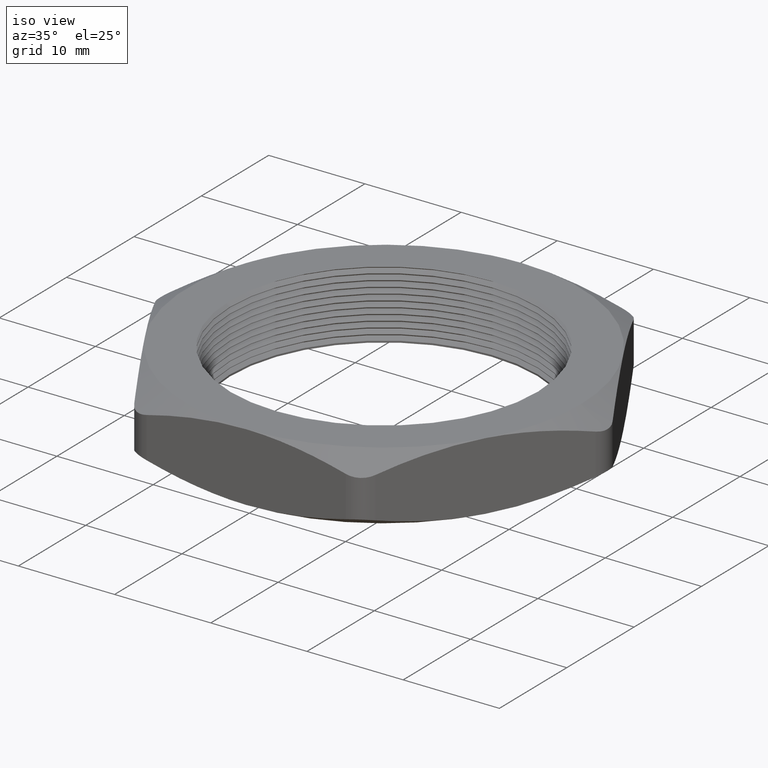
[diagram: clean part render]
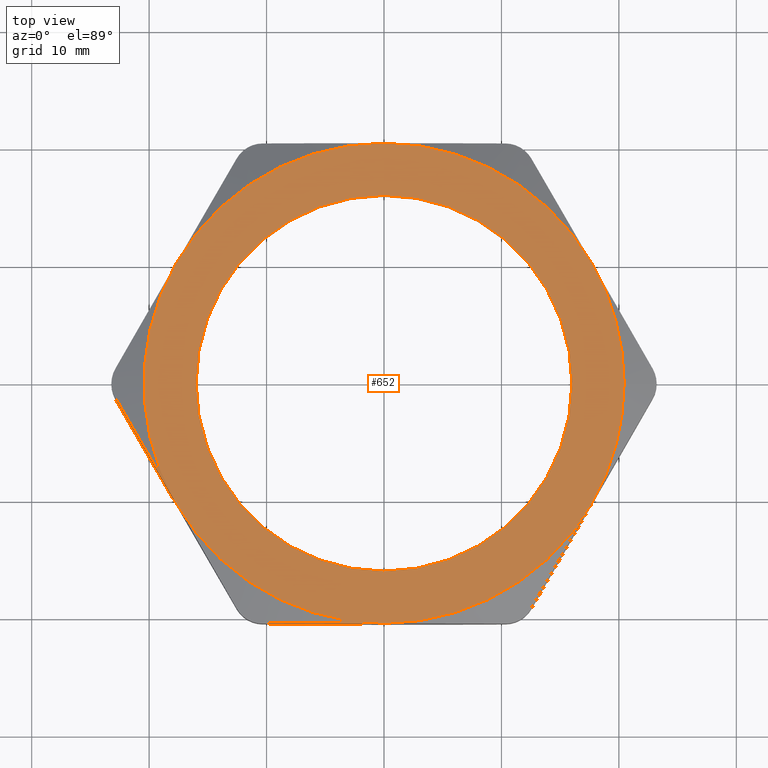
[diagram: tour spotlight — one face highlighted and labeled with its STEP entity id]
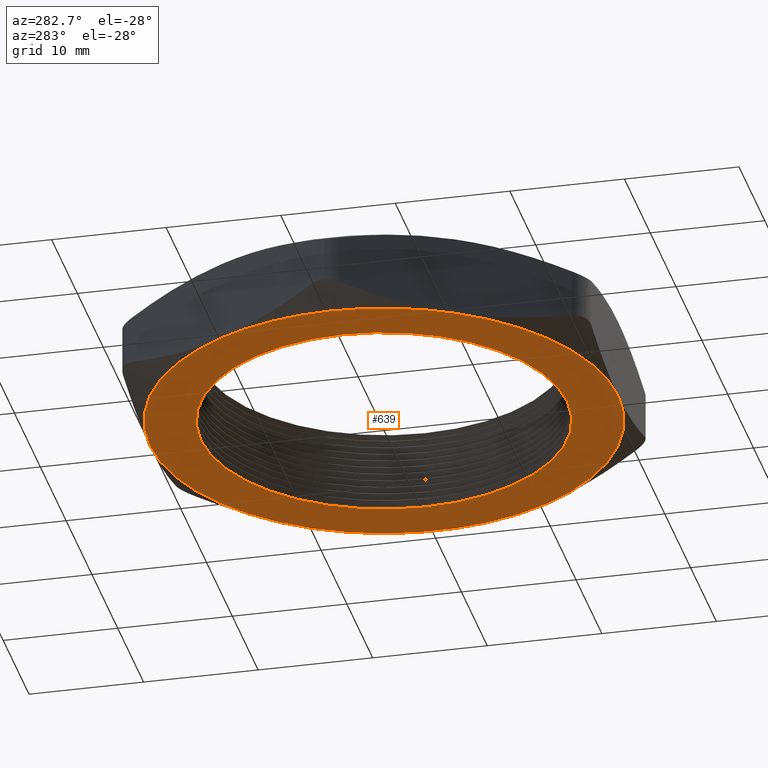
[diagram: tour spotlight — one face highlighted and labeled with its STEP entity id]
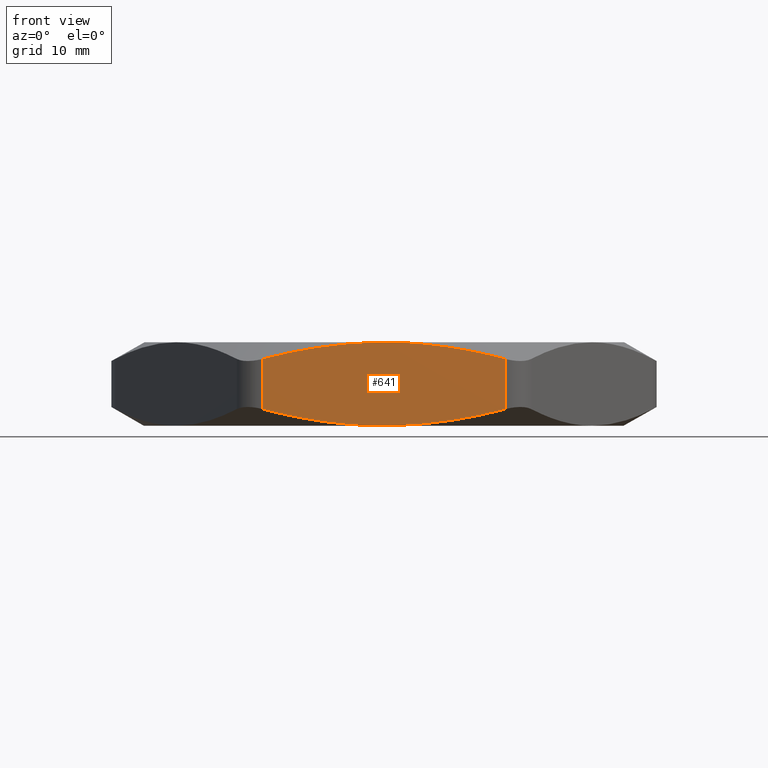
[diagram: tour spotlight — one face highlighted and labeled with its STEP entity id]
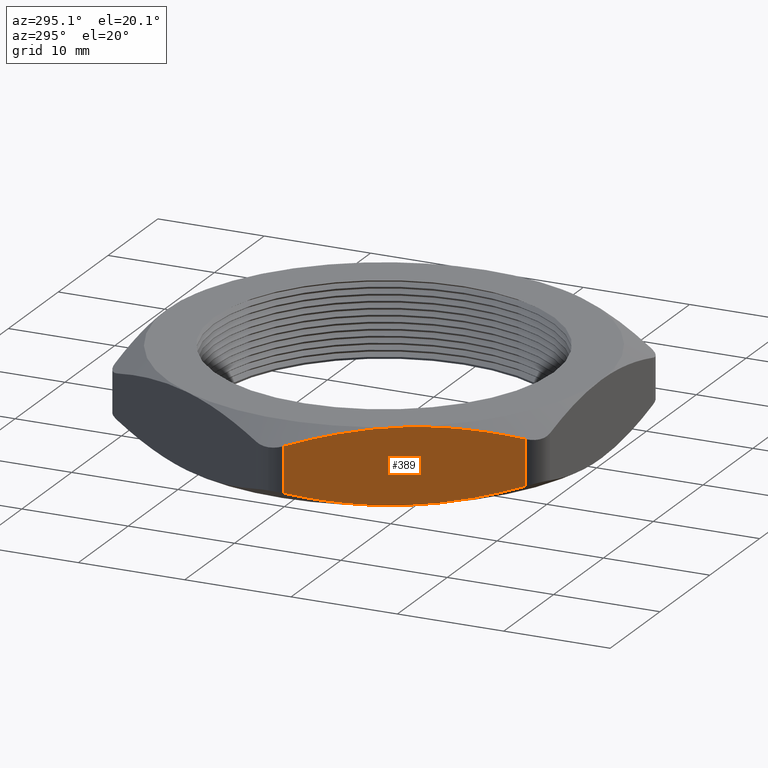
[diagram: tour spotlight — one face highlighted and labeled with its STEP entity id]
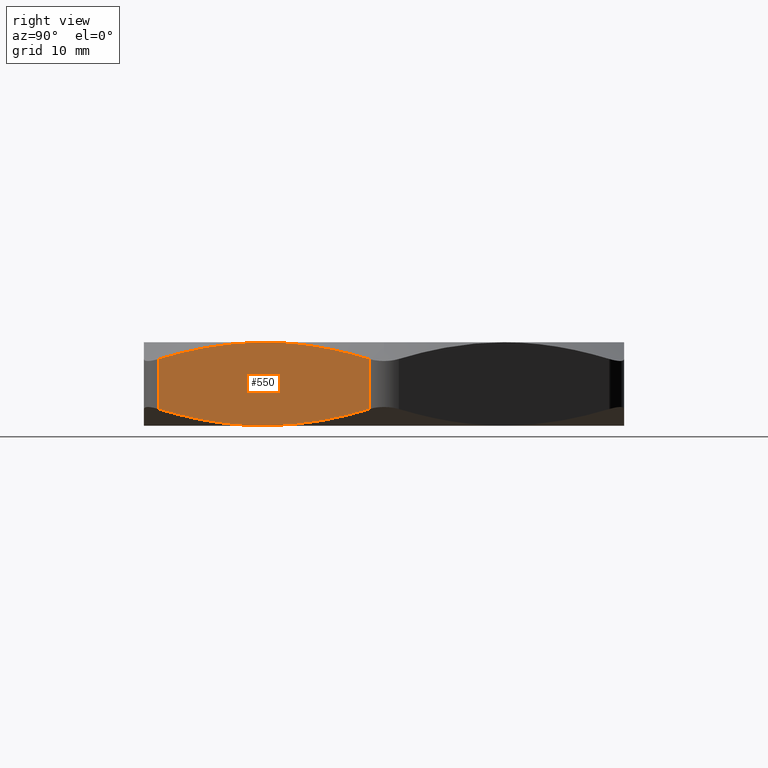
[diagram: tour spotlight — one face highlighted and labeled with its STEP entity id]
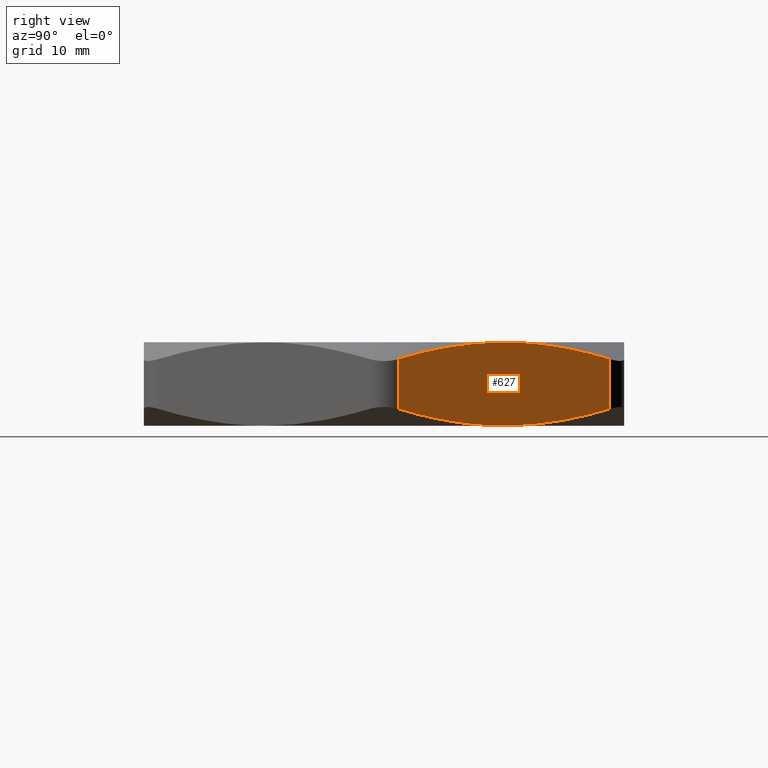
[diagram: tour spotlight — one face highlighted and labeled with its STEP entity id]
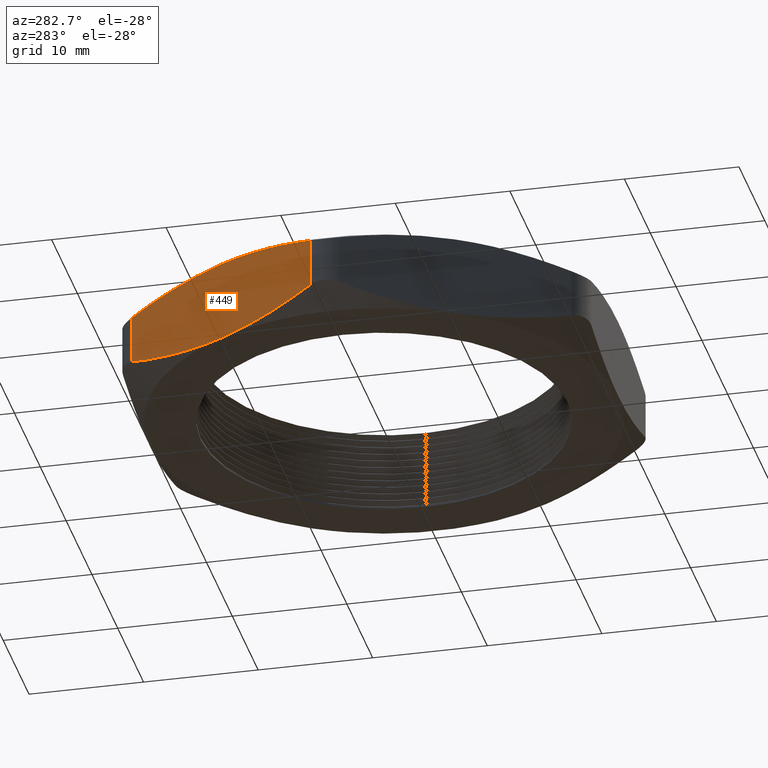
[diagram: tour spotlight — one face highlighted and labeled with its STEP entity id]
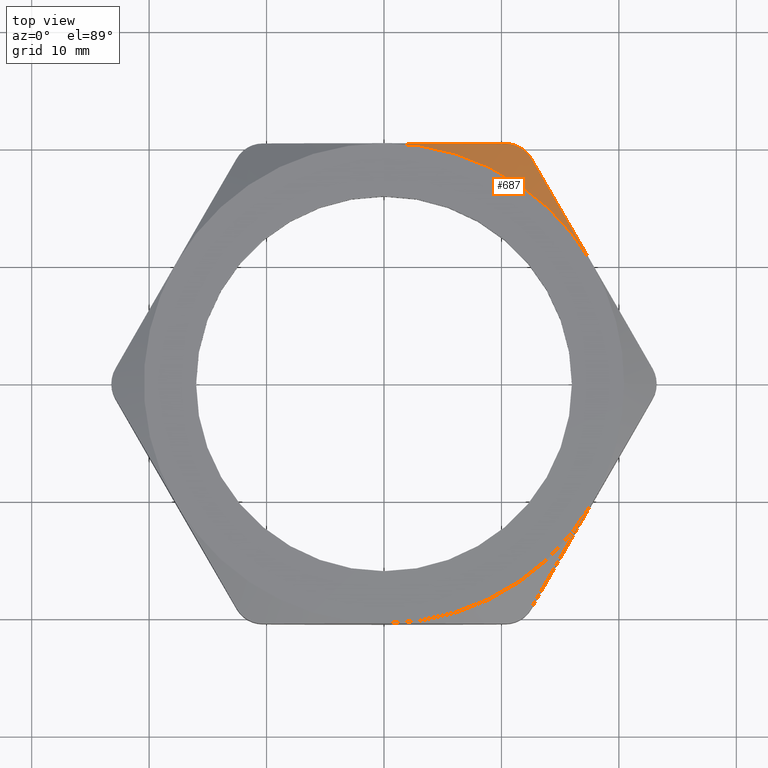
[diagram: tour spotlight — one face highlighted and labeled with its STEP entity id]
A machine part: a face-by-face anatomy tour. The part has 95 B-rep faces; the first image is the clean iso view, then the 8 largest visible faces are spotlighted one at a time (largest first), each with its STEP entity span.

Face 1 — top view, entity #652. In plain terms, the highlighted planar face has unit normal (0, 0, -1).
Definition (entity closure, byte-faithful):
#293 = EDGE_CURVE ( 'NONE', #294, #295, #1916, .T. ) ;
#294 = VERTEX_POINT ( 'NONE', #1912 ) ;
#295 = VERTEX_POINT ( 'NONE', #1911 ) ;
#315 = EDGE_CURVE ( 'NONE', #364, #365, #2074, .T. ) ;
#364 = VERTEX_POINT ( 'NONE', #2136 ) ;
#365 = VERTEX_POINT ( 'NONE', #2292 ) ;
#376 = VERTEX_POINT ( 'NONE', #2281 ) ;
#536 = VERTEX_POINT ( 'NONE', #1456 ) ;
#542 = VERTEX_POINT ( 'NONE', #1497 ) ;
#644 = EDGE_CURVE ( 'NONE', #365, #364, #1621, .T. ) ;
#645 = EDGE_LOOP ( 'NONE', ( #672, #693, #715, #720, #650, #718, #739 ) ) ;
#649 = EDGE_CURVE ( 'NONE', #376, #536, #1669, .T. ) ;
#650 = ORIENTED_EDGE ( 'NONE', *, *, #651, .T. ) ;
#651 = EDGE_CURVE ( 'NONE', #536, #294, #1664, .T. ) ;
#652 = ADVANCED_FACE ( 'NONE', ( #1659, #1658 ), #1657, .F. ) ;
#657 = VERTEX_POINT ( 'NONE', #1651 ) ;
#672 = ORIENTED_EDGE ( 'NONE', *, *, #673, .T. ) ;
#673 = EDGE_CURVE ( 'NONE', #2748, #542, #1725, .T. ) ;
#675 = EDGE_LOOP ( 'NONE', ( #746, #747 ) ) ;
#693 = ORIENTED_EDGE ( 'NONE', *, *, #694, .T. ) ;
#694 = EDGE_CURVE ( 'NONE', #542, #657, #1780, .T. ) ;
#715 = ORIENTED_EDGE ( 'NONE', *, *, #716, .T. ) ;
#716 = EDGE_CURVE ( 'NONE', #657, #376, #1806, .T. ) ;
#718 = ORIENTED_EDGE ( 'NONE', *, *, #293, .T. ) ;
#720 = ORIENTED_EDGE ( 'NONE', *, *, #649, .T. ) ;
#739 = ORIENTED_EDGE ( 'NONE', *, *, #740, .T. ) ;
#740 = EDGE_CURVE ( 'NONE', #295, #2748, #1827, .T. ) ;
#746 = ORIENTED_EDGE ( 'NONE', *, *, #315, .F. ) ;
#747 = ORIENTED_EDGE ( 'NONE', *, *, #644, .F. ) ;
#1456 = CARTESIAN_POINT ( 'NONE',  ( 0.6971504500464734700, -0.4025000000000001400, 0.2800000000000000300 ) ) ;
#1497 = CARTESIAN_POINT ( 'NONE',  ( -0.6971504500464734700, 0.4025000000000001400, 0.2800000000000000300 ) ) ;
#1617 = DIRECTION ( 'NONE',  ( 1.000000000000000000, 0.0000000000000000000, 0.0000000000000000000 ) ) ;
#1618 = DIRECTION ( 'NONE',  ( 0.0000000000000000000, 0.0000000000000000000, 1.000000000000000000 ) ) ;
#1619 = CARTESIAN_POINT ( 'NONE',  ( 0.0000000000000000000, 0.0000000000000000000, 0.2800000000000000300 ) ) ;
#1620 = AXIS2_PLACEMENT_3D ( 'NONE', #1619, #1618, #1617 ) ;
#1621 = CIRCLE ( 'NONE', #1620, 0.6300000000000000000 ) ;
#1651 = CARTESIAN_POINT ( 'NONE',  ( -0.6971504500464734700, -0.4024999999999998600, 0.2800000000000000300 ) ) ;
#1653 = DIRECTION ( 'NONE',  ( -1.000000000000000000, 0.0000000000000000000, 0.0000000000000000000 ) ) ;
#1654 = DIRECTION ( 'NONE',  ( 0.0000000000000000000, 0.0000000000000000000, -1.000000000000000000 ) ) ;
#1655 = CARTESIAN_POINT ( 'NONE',  ( -0.4647669666976488300, 0.8050000000000000500, 0.2800000000000000300 ) ) ;
#1656 = AXIS2_PLACEMENT_3D ( 'NONE', #1655, #1654, #1653 ) ;
#1657 = PLANE ( 'NONE',  #1656 ) ;
#1658 = FACE_OUTER_BOUND ( 'NONE', #645, .T. ) ;
#1659 = FACE_BOUND ( 'NONE', #675, .T. ) ;
#1660 = DIRECTION ( 'NONE',  ( 1.000000000000000000, 0.0000000000000000000, 0.0000000000000000000 ) ) ;
#1661 = DIRECTION ( 'NONE',  ( 0.0000000000000000000, 0.0000000000000000000, 1.000000000000000000 ) ) ;
#1662 = CARTESIAN_POINT ( 'NONE',  ( 0.0000000000000000000, 0.0000000000000000000, 0.2800000000000000300 ) ) ;
#1663 = AXIS2_PLACEMENT_3D ( 'NONE', #1662, #1661, #1660 ) ;
#1664 = CIRCLE ( 'NONE', #1663, 0.8050000000000000500 ) ;
#1665 = DIRECTION ( 'NONE',  ( 1.000000000000000000, 0.0000000000000000000, 0.0000000000000000000 ) ) ;
#1666 = DIRECTION ( 'NONE',  ( 0.0000000000000000000, 0.0000000000000000000, 1.000000000000000000 ) ) ;
#1667 = CARTESIAN_POINT ( 'NONE',  ( 0.0000000000000000000, 0.0000000000000000000, 0.2800000000000000300 ) ) ;
#1668 = AXIS2_PLACEMENT_3D ( 'NONE', #1667, #1666, #1665 ) ;
#1669 = CIRCLE ( 'NONE', #1668, 0.8050000000000000500 ) ;
#1682 = CARTESIAN_POINT ( 'NONE',  ( 0.0000000000000000000, 0.0000000000000000000, 0.2800000000000000300 ) ) ;
#1722 = DIRECTION ( 'NONE',  ( 1.000000000000000000, 0.0000000000000000000, 0.0000000000000000000 ) ) ;
#1723 = DIRECTION ( 'NONE',  ( 0.0000000000000000000, 0.0000000000000000000, 1.000000000000000000 ) ) ;
#1724 = AXIS2_PLACEMENT_3D ( 'NONE', #1682, #1723, #1722 ) ;
#1725 = CIRCLE ( 'NONE', #1724, 0.8050000000000000500 ) ;
#1777 = DIRECTION ( 'NONE',  ( 1.000000000000000000, 0.0000000000000000000, 0.0000000000000000000 ) ) ;
#1778 = DIRECTION ( 'NONE',  ( 0.0000000000000000000, 0.0000000000000000000, 1.000000000000000000 ) ) ;
#1779 = AXIS2_PLACEMENT_3D ( 'NONE', #1787, #1778, #1777 ) ;
#1780 = CIRCLE ( 'NONE', #1779, 0.8050000000000000500 ) ;
#1787 = CARTESIAN_POINT ( 'NONE',  ( 0.0000000000000000000, 0.0000000000000000000, 0.2800000000000000300 ) ) ;
#1800 = DIRECTION ( 'NONE',  ( 1.000000000000000000, 0.0000000000000000000, 0.0000000000000000000 ) ) ;
#1801 = DIRECTION ( 'NONE',  ( 0.0000000000000000000, 0.0000000000000000000, 1.000000000000000000 ) ) ;
#1802 = CARTESIAN_POINT ( 'NONE',  ( 0.0000000000000000000, 0.0000000000000000000, 0.2800000000000000300 ) ) ;
#1803 = AXIS2_PLACEMENT_3D ( 'NONE', #1802, #1801, #1800 ) ;
#1806 = CIRCLE ( 'NONE', #1803, 0.8050000000000000500 ) ;
#1826 = AXIS2_PLACEMENT_3D ( 'NONE', #1828, #2741, #2740 ) ;
#1827 = CIRCLE ( 'NONE', #1826, 0.8050000000000000500 ) ;
#1828 = CARTESIAN_POINT ( 'NONE',  ( 0.0000000000000000000, 0.0000000000000000000, 0.2800000000000000300 ) ) ;
#1911 = CARTESIAN_POINT ( 'NONE',  ( 0.6971504500464735800, 0.4024999999999999100, 0.2800000000000000300 ) ) ;
#1912 = CARTESIAN_POINT ( 'NONE',  ( 0.8050000000000000500, 0.0000000000000000000, 0.2800000000000000300 ) ) ;
#1913 = DIRECTION ( 'NONE',  ( 1.000000000000000000, 0.0000000000000000000, 0.0000000000000000000 ) ) ;
#1914 = DIRECTION ( 'NONE',  ( 0.0000000000000000000, 0.0000000000000000000, 1.000000000000000000 ) ) ;
#1915 = AXIS2_PLACEMENT_3D ( 'NONE', #1921, #1914, #1913 ) ;
#1916 = CIRCLE ( 'NONE', #1915, 0.8050000000000000500 ) ;
#1921 = CARTESIAN_POINT ( 'NONE',  ( 0.0000000000000000000, 0.0000000000000000000, 0.2800000000000000300 ) ) ;
#2070 = DIRECTION ( 'NONE',  ( 1.000000000000000000, 0.0000000000000000000, 0.0000000000000000000 ) ) ;
#2071 = DIRECTION ( 'NONE',  ( 0.0000000000000000000, 0.0000000000000000000, 1.000000000000000000 ) ) ;
#2072 = CARTESIAN_POINT ( 'NONE',  ( 0.0000000000000000000, 0.0000000000000000000, 0.2800000000000000300 ) ) ;
#2073 = AXIS2_PLACEMENT_3D ( 'NONE', #2072, #2071, #2070 ) ;
#2074 = CIRCLE ( 'NONE', #2073, 0.6300000000000000000 ) ;
#2136 = CARTESIAN_POINT ( 'NONE',  ( -0.6300000000000000000, 0.0000000000000000000, 0.2800000000000000300 ) ) ;
#2281 = CARTESIAN_POINT ( 'NONE',  ( 1.182924880895400300E-016, -0.8049999999999998300, 0.2800000000000000300 ) ) ;
#2292 = CARTESIAN_POINT ( 'NONE',  ( 0.6300000000000000000, 7.837739514543061700E-017, 0.2800000000000000300 ) ) ;
#2624 = CARTESIAN_POINT ( 'NONE',  ( 0.0000000000000000000, 0.8050000000000000500, 0.2800000000000000300 ) ) ;
#2740 = DIRECTION ( 'NONE',  ( 1.000000000000000000, 0.0000000000000000000, 0.0000000000000000000 ) ) ;
#2741 = DIRECTION ( 'NONE',  ( 0.0000000000000000000, 0.0000000000000000000, 1.000000000000000000 ) ) ;
#2748 = VERTEX_POINT ( 'NONE', #2624 ) ;

Face 2 — auxiliary view, entity #639. In plain terms, the highlighted planar face has unit normal (0, 0, -1).
Definition (entity closure, byte-faithful):
#1 = CIRCLE ( 'NONE', #5, 0.8049999999999998300 ) ;
#2 = DIRECTION ( 'NONE',  ( -1.000000000000000000, 0.0000000000000000000, 0.0000000000000000000 ) ) ;
#3 = DIRECTION ( 'NONE',  ( 0.0000000000000000000, 0.0000000000000000000, -1.000000000000000000 ) ) ;
#4 = CARTESIAN_POINT ( 'NONE',  ( 0.0000000000000000000, 0.0000000000000000000, 0.0000000000000000000 ) ) ;
#5 = AXIS2_PLACEMENT_3D ( 'NONE', #4, #3, #2 ) ;
#250 = EDGE_CURVE ( 'NONE', #344, #342, #1969, .T. ) ;
#257 = EDGE_CURVE ( 'NONE', #342, #344, #1955, .T. ) ;
#342 = VERTEX_POINT ( 'NONE', #2025 ) ;
#344 = VERTEX_POINT ( 'NONE', #2024 ) ;
#394 = VERTEX_POINT ( 'NONE', #2214 ) ;
#469 = EDGE_CURVE ( 'NONE', #470, #471, #1, .T. ) ;
#470 = VERTEX_POINT ( 'NONE', #586 ) ;
#471 = VERTEX_POINT ( 'NONE', #585 ) ;
#531 = VERTEX_POINT ( 'NONE', #1460 ) ;
#555 = VERTEX_POINT ( 'NONE', #1505 ) ;
#585 = CARTESIAN_POINT ( 'NONE',  ( -0.6971504500464731400, 0.4025000000000000800, 0.0000000000000000000 ) ) ;
#586 = CARTESIAN_POINT ( 'NONE',  ( -0.8049999999999998300, 0.0000000000000000000, 0.0000000000000000000 ) ) ;
#629 = ORIENTED_EDGE ( 'NONE', *, *, #250, .T. ) ;
#630 = ORIENTED_EDGE ( 'NONE', *, *, #257, .T. ) ;
#631 = EDGE_LOOP ( 'NONE', ( #632, #634, #662, #653, #648, #646, #697 ) ) ;
#632 = ORIENTED_EDGE ( 'NONE', *, *, #633, .T. ) ;
#633 = EDGE_CURVE ( 'NONE', #394, #470, #1588, .T. ) ;
#634 = ORIENTED_EDGE ( 'NONE', *, *, #469, .T. ) ;
#639 = ADVANCED_FACE ( 'NONE', ( #1644, #1642 ), #1633, .T. ) ;
#640 = EDGE_LOOP ( 'NONE', ( #629, #630 ) ) ;
#646 = ORIENTED_EDGE ( 'NONE', *, *, #647, .T. ) ;
#647 = EDGE_CURVE ( 'NONE', #555, #531, #1673, .T. ) ;
#648 = ORIENTED_EDGE ( 'NONE', *, *, #676, .T. ) ;
#653 = ORIENTED_EDGE ( 'NONE', *, *, #674, .T. ) ;
#662 = ORIENTED_EDGE ( 'NONE', *, *, #663, .T. ) ;
#663 = EDGE_CURVE ( 'NONE', #471, #2754, #1692, .T. ) ;
#674 = EDGE_CURVE ( 'NONE', #2754, #2750, #1721, .T. ) ;
#676 = EDGE_CURVE ( 'NONE', #2750, #555, #1716, .T. ) ;
#697 = ORIENTED_EDGE ( 'NONE', *, *, #698, .T. ) ;
#698 = EDGE_CURVE ( 'NONE', #531, #394, #1776, .T. ) ;
#1460 = CARTESIAN_POINT ( 'NONE',  ( 1.182924880895400500E-016, -0.8050000000000000500, 0.0000000000000000000 ) ) ;
#1505 = CARTESIAN_POINT ( 'NONE',  ( 0.6971504500464730200, -0.4025000000000000200, 0.0000000000000000000 ) ) ;
#1584 = DIRECTION ( 'NONE',  ( -1.000000000000000000, 0.0000000000000000000, 0.0000000000000000000 ) ) ;
#1585 = DIRECTION ( 'NONE',  ( 0.0000000000000000000, 0.0000000000000000000, -1.000000000000000000 ) ) ;
#1586 = CARTESIAN_POINT ( 'NONE',  ( 0.0000000000000000000, 0.0000000000000000000, 0.0000000000000000000 ) ) ;
#1587 = AXIS2_PLACEMENT_3D ( 'NONE', #1586, #1585, #1584 ) ;
#1588 = CIRCLE ( 'NONE', #1587, 0.8049999999999998300 ) ;
#1622 = CARTESIAN_POINT ( 'NONE',  ( 0.0000000000000000000, 0.0000000000000000000, 0.0000000000000000000 ) ) ;
#1629 = DIRECTION ( 'NONE',  ( -1.000000000000000000, 0.0000000000000000000, 0.0000000000000000000 ) ) ;
#1630 = DIRECTION ( 'NONE',  ( 0.0000000000000000000, 0.0000000000000000000, -1.000000000000000000 ) ) ;
#1631 = CARTESIAN_POINT ( 'NONE',  ( -0.4647669666976488300, 0.8050000000000000500, 0.0000000000000000000 ) ) ;
#1632 = AXIS2_PLACEMENT_3D ( 'NONE', #1631, #1630, #1629 ) ;
#1633 = PLANE ( 'NONE',  #1632 ) ;
#1642 = FACE_OUTER_BOUND ( 'NONE', #631, .T. ) ;
#1644 = FACE_BOUND ( 'NONE', #640, .T. ) ;
#1670 = DIRECTION ( 'NONE',  ( -1.000000000000000000, 0.0000000000000000000, 0.0000000000000000000 ) ) ;
#1671 = DIRECTION ( 'NONE',  ( 0.0000000000000000000, 0.0000000000000000000, -1.000000000000000000 ) ) ;
#1672 = AXIS2_PLACEMENT_3D ( 'NONE', #1622, #1671, #1670 ) ;
#1673 = CIRCLE ( 'NONE', #1672, 0.8049999999999998300 ) ;
#1689 = DIRECTION ( 'NONE',  ( -1.000000000000000000, 0.0000000000000000000, 0.0000000000000000000 ) ) ;
#1690 = DIRECTION ( 'NONE',  ( 0.0000000000000000000, 0.0000000000000000000, -1.000000000000000000 ) ) ;
#1691 = AXIS2_PLACEMENT_3D ( 'NONE', #1699, #1690, #1689 ) ;
#1692 = CIRCLE ( 'NONE', #1691, 0.8050000000000000500 ) ;
#1699 = CARTESIAN_POINT ( 'NONE',  ( 0.0000000000000000000, 0.0000000000000000000, 0.0000000000000000000 ) ) ;
#1712 = DIRECTION ( 'NONE',  ( -1.000000000000000000, 0.0000000000000000000, 0.0000000000000000000 ) ) ;
#1713 = DIRECTION ( 'NONE',  ( 0.0000000000000000000, 0.0000000000000000000, -1.000000000000000000 ) ) ;
#1714 = CARTESIAN_POINT ( 'NONE',  ( 0.0000000000000000000, 0.0000000000000000000, 0.0000000000000000000 ) ) ;
#1715 = AXIS2_PLACEMENT_3D ( 'NONE', #1714, #1713, #1712 ) ;
#1716 = CIRCLE ( 'NONE', #1715, 0.8049999999999998300 ) ;
#1717 = DIRECTION ( 'NONE',  ( -1.000000000000000000, 0.0000000000000000000, 0.0000000000000000000 ) ) ;
#1718 = DIRECTION ( 'NONE',  ( 0.0000000000000000000, 0.0000000000000000000, -1.000000000000000000 ) ) ;
#1719 = CARTESIAN_POINT ( 'NONE',  ( 0.0000000000000000000, 0.0000000000000000000, 0.0000000000000000000 ) ) ;
#1720 = AXIS2_PLACEMENT_3D ( 'NONE', #1719, #1718, #1717 ) ;
#1721 = CIRCLE ( 'NONE', #1720, 0.8049999999999998300 ) ;
#1772 = DIRECTION ( 'NONE',  ( -1.000000000000000000, 0.0000000000000000000, 0.0000000000000000000 ) ) ;
#1773 = DIRECTION ( 'NONE',  ( 0.0000000000000000000, 0.0000000000000000000, -1.000000000000000000 ) ) ;
#1774 = CARTESIAN_POINT ( 'NONE',  ( 0.0000000000000000000, 0.0000000000000000000, 0.0000000000000000000 ) ) ;
#1775 = AXIS2_PLACEMENT_3D ( 'NONE', #1774, #1773, #1772 ) ;
#1776 = CIRCLE ( 'NONE', #1775, 0.8049999999999998300 ) ;
#1951 = DIRECTION ( 'NONE',  ( 1.000000000000000000, 0.0000000000000000000, 0.0000000000000000000 ) ) ;
#1952 = DIRECTION ( 'NONE',  ( 0.0000000000000000000, 0.0000000000000000000, 1.000000000000000000 ) ) ;
#1953 = CARTESIAN_POINT ( 'NONE',  ( 0.0000000000000000000, 0.0000000000000000000, 0.0000000000000000000 ) ) ;
#1954 = AXIS2_PLACEMENT_3D ( 'NONE', #1953, #1952, #1951 ) ;
#1955 = CIRCLE ( 'NONE', #1954, 0.6300000000000000000 ) ;
#1966 = DIRECTION ( 'NONE',  ( 1.000000000000000000, 0.0000000000000000000, 0.0000000000000000000 ) ) ;
#1967 = DIRECTION ( 'NONE',  ( 0.0000000000000000000, 0.0000000000000000000, 1.000000000000000000 ) ) ;
#1968 = AXIS2_PLACEMENT_3D ( 'NONE', #1973, #1967, #1966 ) ;
#1969 = CIRCLE ( 'NONE', #1968, 0.6300000000000000000 ) ;
#1973 = CARTESIAN_POINT ( 'NONE',  ( 0.0000000000000000000, 0.0000000000000000000, 0.0000000000000000000 ) ) ;
#2024 = CARTESIAN_POINT ( 'NONE',  ( -0.6300000000000000000, 0.0000000000000000000, 0.0000000000000000000 ) ) ;
#2025 = CARTESIAN_POINT ( 'NONE',  ( 0.6300000000000000000, 7.715274834628325400E-017, 0.0000000000000000000 ) ) ;
#2214 = CARTESIAN_POINT ( 'NONE',  ( -0.6971504500464732500, -0.4024999999999997500, 0.0000000000000000000 ) ) ;
#2621 = CARTESIAN_POINT ( 'NONE',  ( 0.0000000000000000000, 0.8050000000000000500, 0.0000000000000000000 ) ) ;
#2626 = CARTESIAN_POINT ( 'NONE',  ( 0.6971504500464732500, 0.4024999999999998000, 0.0000000000000000000 ) ) ;
#2750 = VERTEX_POINT ( 'NONE', #2626 ) ;
#2754 = VERTEX_POINT ( 'NONE', #2621 ) ;

Face 3 — front view, entity #641. In plain terms, the highlighted planar face has unit normal (-0, 1, 0).
Definition (entity closure, byte-faithful):
#23 = ORIENTED_EDGE ( 'NONE', *, *, #375, .F. ) ;
#25 = VERTEX_POINT ( 'NONE', #1043 ) ;
#375 = EDGE_CURVE ( 'NONE', #376, #25, #2282, .T. ) ;
#376 = VERTEX_POINT ( 'NONE', #2281 ) ;
#377 = ORIENTED_EDGE ( 'NONE', *, *, #378, .F. ) ;
#378 = EDGE_CURVE ( 'NONE', #379, #376, #2272, .T. ) ;
#379 = VERTEX_POINT ( 'NONE', #2271 ) ;
#380 = ORIENTED_EDGE ( 'NONE', *, *, #569, .T. ) ;
#531 = VERTEX_POINT ( 'NONE', #1460 ) ;
#532 = ORIENTED_EDGE ( 'NONE', *, *, #572, .T. ) ;
#549 = EDGE_CURVE ( 'NONE', #531, #570, #1519, .T. ) ;
#558 = ORIENTED_EDGE ( 'NONE', *, *, #559, .F. ) ;
#559 = EDGE_CURVE ( 'NONE', #686, #531, #1546, .T. ) ;
#569 = EDGE_CURVE ( 'NONE', #379, #570, #1573, .T. ) ;
#570 = VERTEX_POINT ( 'NONE', #1561 ) ;
#571 = ORIENTED_EDGE ( 'NONE', *, *, #549, .F. ) ;
#572 = EDGE_CURVE ( 'NONE', #686, #25, #1560, .T. ) ;
#641 = ADVANCED_FACE ( 'NONE', ( #1628 ), #1627, .F. ) ;
#660 = EDGE_LOOP ( 'NONE', ( #558, #532, #23, #377, #380, #571 ) ) ;
#686 = VERTEX_POINT ( 'NONE', #1749 ) ;
#1043 = CARTESIAN_POINT ( 'NONE',  ( 0.4070319397786862900, -0.8049999999999998300, 0.2239663010554733500 ) ) ;
#1460 = CARTESIAN_POINT ( 'NONE',  ( 1.182924880895400500E-016, -0.8050000000000000500, 0.0000000000000000000 ) ) ;
#1509 = CARTESIAN_POINT ( 'NONE',  ( -0.4070319397786921200, -0.8050000000000000500, 0.05603369894452794200 ) ) ;
#1510 = CARTESIAN_POINT ( 'NONE',  ( -0.3736440728882453600, -0.8049999999999998300, 0.04733559931829577100 ) ) ;
#1511 = CARTESIAN_POINT ( 'NONE',  ( -0.3399264071752846100, -0.8050000000000001600, 0.03940933049144212200 ) ) ;
#1512 = CARTESIAN_POINT ( 'NONE',  ( -0.2724720025313903700, -0.8050000000000000500, 0.02556361763985591900 ) ) ;
#1513 = CARTESIAN_POINT ( 'NONE',  ( -0.2386573306262682600, -0.8049999999999998300, 0.01962339070232459500 ) ) ;
#1514 = CARTESIAN_POINT ( 'NONE',  ( -0.1369158576201742500, -0.8050000000000000500, 0.005144332140097254700 ) ) ;
#1515 = CARTESIAN_POINT ( 'NONE',  ( -0.06868689231738217500, -0.8050000000000000500, -4.126228740430399100E-017 ) ) ;
#1516 = CARTESIAN_POINT ( 'NONE',  ( 1.182924880895400500E-016, -0.8050000000000000500, 0.0000000000000000000 ) ) ;
#1519 = B_SPLINE_CURVE_WITH_KNOTS ( 'NONE', 3,
 ( #1516, #1515, #1514, #1513, #1512, #1511, #1510, #1509 ),
 .UNSPECIFIED., .F., .F.,
 ( 4, 2, 2, 4 ),
 ( 0.06753682115212610000, 0.07275696040311240000, 0.07536703002860555000, 0.07797709965409870000 ),
 .UNSPECIFIED. ) ;
#1535 = CARTESIAN_POINT ( 'NONE',  ( 1.182924880895400500E-016, -0.8050000000000000500, 0.0000000000000000000 ) ) ;
#1536 = CARTESIAN_POINT ( 'NONE',  ( 0.03432798341849611900, -0.8049999999999997200, -3.885383851666052000E-017 ) ) ;
#1537 = CARTESIAN_POINT ( 'NONE',  ( 0.06876927857934934900, -0.8050000000000001600, 0.001272939179144252200 ) ) ;
#1538 = CARTESIAN_POINT ( 'NONE',  ( 0.1378774033119676300, -0.8049999999999998300, 0.006352461288036207100 ) ) ;
#1539 = CARTESIAN_POINT ( 'NONE',  ( 0.1721876262036882200, -0.8049999999999997200, 0.01013283295829009300 ) ) ;
#1540 = CARTESIAN_POINT ( 'NONE',  ( 0.2741538617125915400, -0.8049999999999998300, 0.02473920009370485900 ) ) ;
#1541 = CARTESIAN_POINT ( 'NONE',  ( 0.3409978994224126000, -0.8050000000000001600, 0.03883072327596584500 ) ) ;
#1542 = CARTESIAN_POINT ( 'NONE',  ( 0.4070319397786861200, -0.8049999999999998300, 0.05603369894452666500 ) ) ;
#1546 = B_SPLINE_CURVE_WITH_KNOTS ( 'NONE', 3,
 ( #1542, #1541, #1540, #1539, #1538, #1537, #1536, #1535 ),
 .UNSPECIFIED., .F., .F.,
 ( 4, 2, 2, 4 ),
 ( 0.05710124326503342200, 0.06231903220857976100, 0.06492792668035293800, 0.06753682115212610000 ),
 .UNSPECIFIED. ) ;
#1557 = DIRECTION ( 'NONE',  ( 0.0000000000000000000, 0.0000000000000000000, 1.000000000000000000 ) ) ;
#1558 = VECTOR ( 'NONE', #1557, 39.37007874015748100 ) ;
#1559 = CARTESIAN_POINT ( 'NONE',  ( 0.4070319397786862900, -0.8049999999999998300, 0.2800000000000000300 ) ) ;
#1560 = LINE ( 'NONE', #1559, #1558 ) ;
#1561 = CARTESIAN_POINT ( 'NONE',  ( -0.4070319397786921200, -0.8050000000000000500, 0.05603369894452794200 ) ) ;
#1562 = VECTOR ( 'NONE', #1571, 39.37007874015748100 ) ;
#1571 = DIRECTION ( 'NONE',  ( 0.0000000000000000000, 0.0000000000000000000, -1.000000000000000000 ) ) ;
#1572 = CARTESIAN_POINT ( 'NONE',  ( -0.4070319397786865100, -0.8050000000000000500, 0.2800000000000000300 ) ) ;
#1573 = LINE ( 'NONE', #1572, #1562 ) ;
#1623 = DIRECTION ( 'NONE',  ( -1.000000000000000000, -1.469471901733416700E-016, 0.0000000000000000000 ) ) ;
#1624 = DIRECTION ( 'NONE',  ( -1.469471901733416700E-016, 1.000000000000000000, 0.0000000000000000000 ) ) ;
#1625 = CARTESIAN_POINT ( 'NONE',  ( -0.4647669666976491100, -0.8050000000000000500, 0.2800000000000000300 ) ) ;
#1626 = AXIS2_PLACEMENT_3D ( 'NONE', #1625, #1624, #1623 ) ;
#1627 = PLANE ( 'NONE',  #1626 ) ;
#1628 = FACE_OUTER_BOUND ( 'NONE', #660, .T. ) ;
#1749 = CARTESIAN_POINT ( 'NONE',  ( 0.4070319397786861200, -0.8049999999999998300, 0.05603369894452666500 ) ) ;
#2263 = CARTESIAN_POINT ( 'NONE',  ( 1.182924880895400300E-016, -0.8049999999999998300, 0.2800000000000000300 ) ) ;
#2264 = CARTESIAN_POINT ( 'NONE',  ( -0.06868689231738209200, -0.8050000000000000500, 0.2800000000000001400 ) ) ;
#2265 = CARTESIAN_POINT ( 'NONE',  ( -0.1369158576201743600, -0.8050000000000002700, 0.2748556678599027900 ) ) ;
#2266 = CARTESIAN_POINT ( 'NONE',  ( -0.2386573306262685700, -0.8050000000000000500, 0.2603766092976754200 ) ) ;
#2267 = CARTESIAN_POINT ( 'NONE',  ( -0.2724720025313905900, -0.8049999999999998300, 0.2544363823601439900 ) ) ;
#2268 = CARTESIAN_POINT ( 'NONE',  ( -0.3399264071752846600, -0.8050000000000000500, 0.2405906695085578400 ) ) ;
#2269 = CARTESIAN_POINT ( 'NONE',  ( -0.3736440728882456900, -0.8050000000000000500, 0.2326644006817042700 ) ) ;
#2270 = CARTESIAN_POINT ( 'NONE',  ( -0.4070319397786924000, -0.8050000000000000500, 0.2239663010554719100 ) ) ;
#2271 = CARTESIAN_POINT ( 'NONE',  ( -0.4070319397786924000, -0.8050000000000000500, 0.2239663010554719100 ) ) ;
#2272 = B_SPLINE_CURVE_WITH_KNOTS ( 'NONE', 3,
 ( #2270, #2269, #2268, #2267, #2266, #2265, #2264, #2263 ),
 .UNSPECIFIED., .F., .F.,
 ( 4, 2, 2, 4 ),
 ( 0.02339468078337587900, 0.02600431602988276900, 0.02861395127638966000, 0.03383322176940344000 ),
 .UNSPECIFIED. ) ;
#2273 = CARTESIAN_POINT ( 'NONE',  ( 0.4070319397786862900, -0.8049999999999998300, 0.2239663010554733500 ) ) ;
#2274 = CARTESIAN_POINT ( 'NONE',  ( 0.3409978994224127600, -0.8050000000000001600, 0.2411692767240342400 ) ) ;
#2275 = CARTESIAN_POINT ( 'NONE',  ( 0.2741538617125917100, -0.8050000000000001600, 0.2552607999062951900 ) ) ;
#2276 = CARTESIAN_POINT ( 'NONE',  ( 0.1721876262036883300, -0.8049999999999998300, 0.2698671670417099300 ) ) ;
#2277 = CARTESIAN_POINT ( 'NONE',  ( 0.1378774033119682400, -0.8050000000000000500, 0.2736475387119636800 ) ) ;
#2278 = CARTESIAN_POINT ( 'NONE',  ( 0.06876927857934987700, -0.8049999999999998300, 0.2787270608208556900 ) ) ;
#2279 = CARTESIAN_POINT ( 'NONE',  ( 0.03432798341849623700, -0.8050000000000001600, 0.2800000000000000800 ) ) ;
#2280 = CARTESIAN_POINT ( 'NONE',  ( 1.182924880895400300E-016, -0.8049999999999998300, 0.2800000000000000300 ) ) ;
#2281 = CARTESIAN_POINT ( 'NONE',  ( 1.182924880895400300E-016, -0.8049999999999998300, 0.2800000000000000300 ) ) ;
#2282 = B_SPLINE_CURVE_WITH_KNOTS ( 'NONE', 3,
 ( #2280, #2279, #2278, #2277, #2276, #2275, #2274, #2273 ),
 .UNSPECIFIED., .F., .F.,
 ( 4, 2, 2, 4 ),
 ( 0.03383322176940344000, 0.03644168205776447700, 0.03905014234612550600, 0.04426706292284757200 ),
 .UNSPECIFIED. ) ;

Face 4 — auxiliary view, entity #389. In plain terms, the highlighted planar face has unit normal (0.866, 0.5, 0).
Definition (entity closure, byte-faithful):
#303 = VERTEX_POINT ( 'NONE', #1863 ) ;
#389 = ADVANCED_FACE ( 'NONE', ( #2231 ), #2228, .F. ) ;
#390 = EDGE_LOOP ( 'NONE', ( #391, #664, #655, #658, #683, #684 ) ) ;
#391 = ORIENTED_EDGE ( 'NONE', *, *, #392, .F. ) ;
#392 = EDGE_CURVE ( 'NONE', #393, #394, #2216, .T. ) ;
#393 = VERTEX_POINT ( 'NONE', #2215 ) ;
#394 = VERTEX_POINT ( 'NONE', #2214 ) ;
#395 = VERTEX_POINT ( 'NONE', #2213 ) ;
#463 = VERTEX_POINT ( 'NONE', #2327 ) ;
#465 = EDGE_CURVE ( 'NONE', #303, #463, #2320, .T. ) ;
#655 = ORIENTED_EDGE ( 'NONE', *, *, #656, .F. ) ;
#656 = EDGE_CURVE ( 'NONE', #657, #395, #1652, .T. ) ;
#657 = VERTEX_POINT ( 'NONE', #1651 ) ;
#658 = ORIENTED_EDGE ( 'NONE', *, *, #659, .F. ) ;
#659 = EDGE_CURVE ( 'NONE', #303, #657, #1701, .T. ) ;
#664 = ORIENTED_EDGE ( 'NONE', *, *, #665, .T. ) ;
#665 = EDGE_CURVE ( 'NONE', #393, #395, #1688, .T. ) ;
#683 = ORIENTED_EDGE ( 'NONE', *, *, #465, .T. ) ;
#684 = ORIENTED_EDGE ( 'NONE', *, *, #685, .F. ) ;
#685 = EDGE_CURVE ( 'NONE', #394, #463, #1750, .T. ) ;
#1646 = CARTESIAN_POINT ( 'NONE',  ( -0.6112886307861290500, -0.5512170333892124600, 0.2699213243682715400 ) ) ;
#1647 = CARTESIAN_POINT ( 'NONE',  ( -0.6283301011752821000, -0.5217003408395187700, 0.2736641688943517400 ) ) ;
#1648 = CARTESIAN_POINT ( 'NONE',  ( -0.6626154677923888900, -0.4623163439025638200, 0.2787057272964901800 ) ) ;
#1649 = CARTESIAN_POINT ( 'NONE',  ( -0.6799256321757857200, -0.4323342597031505900, 0.2799999999999999700 ) ) ;
#1650 = CARTESIAN_POINT ( 'NONE',  ( -0.6971504500464734700, -0.4024999999999998600, 0.2800000000000000300 ) ) ;
#1651 = CARTESIAN_POINT ( 'NONE',  ( -0.6971504500464734700, -0.4024999999999998600, 0.2800000000000000300 ) ) ;
#1652 = B_SPLINE_CURVE_WITH_KNOTS ( 'NONE', 3,
 ( #1650, #1649, #1648, #1647, #1646, #1704, #1703, #1702 ),
 .UNSPECIFIED., .F., .F.,
 ( 4, 2, 2, 4 ),
 ( 0.01194504610381488300, 0.01454343852581664800, 0.01714183094781841100, 0.02233861579182194100 ),
 .UNSPECIFIED. ) ;
#1685 = DIRECTION ( 'NONE',  ( 0.0000000000000000000, 0.0000000000000000000, 1.000000000000000000 ) ) ;
#1686 = VECTOR ( 'NONE', #1685, 39.37007874015748100 ) ;
#1687 = CARTESIAN_POINT ( 'NONE',  ( -0.4936344801571304600, -0.7550000000000000000, 0.2800000000000000300 ) ) ;
#1688 = LINE ( 'NONE', #1687, #1686 ) ;
#1693 = CARTESIAN_POINT ( 'NONE',  ( -0.6971504500464734700, -0.4024999999999998600, 0.2800000000000000300 ) ) ;
#1694 = CARTESIAN_POINT ( 'NONE',  ( -0.7317405153778161500, -0.3425882494089870200, 0.2800000000000000300 ) ) ;
#1695 = CARTESIAN_POINT ( 'NONE',  ( -0.7659560800022009500, -0.2833251530698962000, 0.2747856712458402500 ) ) ;
#1696 = CARTESIAN_POINT ( 'NONE',  ( -0.8337462526203335300, -0.1659091298414263600, 0.2554327085834739400 ) ) ;
#1697 = CARTESIAN_POINT ( 'NONE',  ( -0.8673240716725890700, -0.1077506412355651200, 0.2413387835754069200 ) ) ;
#1698 = CARTESIAN_POINT ( 'NONE',  ( -0.9006664199358162000, -0.04999999999999994700, 0.2239663010554733000 ) ) ;
#1701 = B_SPLINE_CURVE_WITH_KNOTS ( 'NONE', 3,
 ( #1698, #1697, #1696, #1695, #1694, #1693 ),
 .UNSPECIFIED., .F., .F.,
 ( 4, 2, 4 ),
 ( 0.001509108341423813200, 0.006727077222619348000, 0.01194504610381488300 ),
 .UNSPECIFIED. ) ;
#1702 = CARTESIAN_POINT ( 'NONE',  ( -0.4936344801571304600, -0.7549999999999998900, 0.2239663010554732700 ) ) ;
#1703 = CARTESIAN_POINT ( 'NONE',  ( -0.5269018215575088600, -0.6973792744618049200, 0.2412997024823949300 ) ) ;
#1704 = CARTESIAN_POINT ( 'NONE',  ( -0.5604378036114555700, -0.6392932496626510000, 0.2553894821507625700 ) ) ;
#1740 = CARTESIAN_POINT ( 'NONE',  ( -0.9006664199358162000, -0.04999999999999998200, 0.05603369894452671400 ) ) ;
#1741 = CARTESIAN_POINT ( 'NONE',  ( -0.8673990785354376300, -0.1076207255381948800, 0.03870029751760508500 ) ) ;
#1742 = CARTESIAN_POINT ( 'NONE',  ( -0.8338630964814910400, -0.1657067503373488000, 0.02461051784923743200 ) ) ;
#1743 = CARTESIAN_POINT ( 'NONE',  ( -0.7830122693068174400, -0.2537829666107872500, 0.01007867563172848800 ) ) ;
#1744 = CARTESIAN_POINT ( 'NONE',  ( -0.7659707989176647300, -0.2832996591604806700, 0.006335831105648274100 ) ) ;
#1745 = CARTESIAN_POINT ( 'NONE',  ( -0.7316854323005579400, -0.3426836560974356700, 0.001294272703509877500 ) ) ;
#1746 = CARTESIAN_POINT ( 'NONE',  ( -0.7143752679171605500, -0.3726657402968487900, 4.096771557881525800E-017 ) ) ;
#1747 = CARTESIAN_POINT ( 'NONE',  ( -0.6971504500464732500, -0.4024999999999997500, 0.0000000000000000000 ) ) ;
#1750 = B_SPLINE_CURVE_WITH_KNOTS ( 'NONE', 3,
 ( #1747, #1746, #1745, #1744, #1743, #1742, #1741, #1740 ),
 .UNSPECIFIED., .F., .F.,
 ( 4, 2, 2, 4 ),
 ( 0.01194504610381489200, 0.01454343852581665300, 0.01714183094781841400, 0.02233861579182193400 ),
 .UNSPECIFIED. ) ;
#1863 = CARTESIAN_POINT ( 'NONE',  ( -0.9006664199358162000, -0.04999999999999994700, 0.2239663010554733000 ) ) ;
#2206 = CARTESIAN_POINT ( 'NONE',  ( -0.6971504500464732500, -0.4024999999999997500, 0.0000000000000000000 ) ) ;
#2207 = CARTESIAN_POINT ( 'NONE',  ( -0.6625603847151304600, -0.4624117505910125800, 3.681592022711604500E-017 ) ) ;
#2208 = CARTESIAN_POINT ( 'NONE',  ( -0.6283448200907458800, -0.5216748469301032400, 0.005214328754159790000 ) ) ;
#2209 = CARTESIAN_POINT ( 'NONE',  ( -0.5605546474726131900, -0.6390908701585735800, 0.02456729141652623500 ) ) ;
#2210 = CARTESIAN_POINT ( 'NONE',  ( -0.5269768284203574200, -0.6972493587644345000, 0.03866121642459315700 ) ) ;
#2211 = CARTESIAN_POINT ( 'NONE',  ( -0.4936344801571303500, -0.7550000000000000000, 0.05603369894452680400 ) ) ;
#2213 = CARTESIAN_POINT ( 'NONE',  ( -0.4936344801571304600, -0.7549999999999998900, 0.2239663010554732700 ) ) ;
#2214 = CARTESIAN_POINT ( 'NONE',  ( -0.6971504500464732500, -0.4024999999999997500, 0.0000000000000000000 ) ) ;
#2215 = CARTESIAN_POINT ( 'NONE',  ( -0.4936344801571303500, -0.7550000000000000000, 0.05603369894452680400 ) ) ;
#2216 = B_SPLINE_CURVE_WITH_KNOTS ( 'NONE', 3,
 ( #2211, #2210, #2209, #2208, #2207, #2206 ),
 .UNSPECIFIED., .F., .F.,
 ( 4, 2, 4 ),
 ( 0.001509108341423811600, 0.006727077222619351500, 0.01194504610381489200 ),
 .UNSPECIFIED. ) ;
#2217 = DIRECTION ( 'NONE',  ( -0.4999999999999996100, 0.8660254037844388200, 0.0000000000000000000 ) ) ;
#2218 = DIRECTION ( 'NONE',  ( 0.8660254037844388200, 0.4999999999999996100, 0.0000000000000000000 ) ) ;
#2219 = CARTESIAN_POINT ( 'NONE',  ( -0.9295339333952975500, 1.390498370135063600E-016, 0.2800000000000000300 ) ) ;
#2228 = PLANE ( 'NONE',  #2230 ) ;
#2230 = AXIS2_PLACEMENT_3D ( 'NONE', #2219, #2218, #2217 ) ;
#2231 = FACE_OUTER_BOUND ( 'NONE', #390, .T. ) ;
#2320 = LINE ( 'NONE', #2323, #2322 ) ;
#2321 = DIRECTION ( 'NONE',  ( 0.0000000000000000000, 0.0000000000000000000, -1.000000000000000000 ) ) ;
#2322 = VECTOR ( 'NONE', #2321, 39.37007874015748100 ) ;
#2323 = CARTESIAN_POINT ( 'NONE',  ( -0.9006664199358162000, -0.04999999999999995400, 0.2800000000000000300 ) ) ;
#2327 = CARTESIAN_POINT ( 'NONE',  ( -0.9006664199358162000, -0.04999999999999998200, 0.05603369894452671400 ) ) ;

Face 5 — right view, entity #550. In plain terms, the highlighted planar face has unit normal (-0.866, 0.5, 0).
Definition (entity closure, byte-faithful):
#533 = VERTEX_POINT ( 'NONE', #1459 ) ;
#534 = ORIENTED_EDGE ( 'NONE', *, *, #535, .F. ) ;
#535 = EDGE_CURVE ( 'NONE', #536, #533, #1457, .T. ) ;
#536 = VERTEX_POINT ( 'NONE', #1456 ) ;
#543 = ORIENTED_EDGE ( 'NONE', *, *, #544, .F. ) ;
#544 = EDGE_CURVE ( 'NONE', #545, #536, #1488, .T. ) ;
#545 = VERTEX_POINT ( 'NONE', #1487 ) ;
#546 = ORIENTED_EDGE ( 'NONE', *, *, #547, .T. ) ;
#547 = EDGE_CURVE ( 'NONE', #545, #661, #1480, .T. ) ;
#550 = ADVANCED_FACE ( 'NONE', ( #1518 ), #1517, .F. ) ;
#551 = EDGE_LOOP ( 'NONE', ( #552, #556, #534, #543, #546, #635 ) ) ;
#552 = ORIENTED_EDGE ( 'NONE', *, *, #553, .F. ) ;
#553 = EDGE_CURVE ( 'NONE', #554, #555, #1504, .T. ) ;
#554 = VERTEX_POINT ( 'NONE', #1503 ) ;
#555 = VERTEX_POINT ( 'NONE', #1505 ) ;
#556 = ORIENTED_EDGE ( 'NONE', *, *, #557, .T. ) ;
#557 = EDGE_CURVE ( 'NONE', #554, #533, #1550, .T. ) ;
#626 = EDGE_CURVE ( 'NONE', #555, #661, #1602, .T. ) ;
#635 = ORIENTED_EDGE ( 'NONE', *, *, #626, .F. ) ;
#661 = VERTEX_POINT ( 'NONE', #1700 ) ;
#1446 = CARTESIAN_POINT ( 'NONE',  ( 0.9006664199358162000, -0.05000000000000003100, 0.2239663010554733000 ) ) ;
#1447 = CARTESIAN_POINT ( 'NONE',  ( 0.8673990785354379600, -0.1076207255381949900, 0.2412997024823949900 ) ) ;
#1448 = CARTESIAN_POINT ( 'NONE',  ( 0.8338630964814911500, -0.1657067503373488600, 0.2553894821507627400 ) ) ;
#1449 = CARTESIAN_POINT ( 'NONE',  ( 0.7830122693068175500, -0.2537829666107874700, 0.2699213243682716500 ) ) ;
#1450 = CARTESIAN_POINT ( 'NONE',  ( 0.7659707989176645100, -0.2832996591604808300, 0.2736641688943518000 ) ) ;
#1451 = CARTESIAN_POINT ( 'NONE',  ( 0.7316854323005578300, -0.3426836560974359000, 0.2787057272964901800 ) ) ;
#1452 = CARTESIAN_POINT ( 'NONE',  ( 0.7143752679171604400, -0.3726657402968489000, 0.2799999999999998000 ) ) ;
#1453 = CARTESIAN_POINT ( 'NONE',  ( 0.6971504500464734700, -0.4025000000000001400, 0.2800000000000000300 ) ) ;
#1456 = CARTESIAN_POINT ( 'NONE',  ( 0.6971504500464734700, -0.4025000000000001400, 0.2800000000000000300 ) ) ;
#1457 = B_SPLINE_CURVE_WITH_KNOTS ( 'NONE', 3,
 ( #1453, #1452, #1451, #1450, #1449, #1448, #1447, #1446 ),
 .UNSPECIFIED., .F., .F.,
 ( 4, 2, 2, 4 ),
 ( 0.01194504610381488500, 0.01454343852581665100, 0.01714183094781841400, 0.02233861579182193700 ),
 .UNSPECIFIED. ) ;
#1459 = CARTESIAN_POINT ( 'NONE',  ( 0.9006664199358162000, -0.05000000000000003100, 0.2239663010554733000 ) ) ;
#1477 = DIRECTION ( 'NONE',  ( 0.0000000000000000000, 0.0000000000000000000, -1.000000000000000000 ) ) ;
#1478 = VECTOR ( 'NONE', #1477, 39.37007874015748100 ) ;
#1479 = CARTESIAN_POINT ( 'NONE',  ( 0.4936344801571300700, -0.7549999999999998900, 0.2800000000000000300 ) ) ;
#1480 = LINE ( 'NONE', #1479, #1478 ) ;
#1481 = CARTESIAN_POINT ( 'NONE',  ( 0.6971504500464734700, -0.4025000000000001400, 0.2800000000000000300 ) ) ;
#1482 = CARTESIAN_POINT ( 'NONE',  ( 0.6625603847151302400, -0.4624117505910126900, 0.2800000000000001400 ) ) ;
#1483 = CARTESIAN_POINT ( 'NONE',  ( 0.6283448200907453300, -0.5216748469301032400, 0.2747856712458402500 ) ) ;
#1484 = CARTESIAN_POINT ( 'NONE',  ( 0.5605546474726128500, -0.6390908701585734700, 0.2554327085834739400 ) ) ;
#1485 = CARTESIAN_POINT ( 'NONE',  ( 0.5269768284203570900, -0.6972493587644347200, 0.2413387835754070600 ) ) ;
#1486 = CARTESIAN_POINT ( 'NONE',  ( 0.4936344801571300700, -0.7549999999999998900, 0.2239663010554733500 ) ) ;
#1487 = CARTESIAN_POINT ( 'NONE',  ( 0.4936344801571300700, -0.7549999999999998900, 0.2239663010554733500 ) ) ;
#1488 = B_SPLINE_CURVE_WITH_KNOTS ( 'NONE', 3,
 ( #1486, #1485, #1484, #1483, #1482, #1481 ),
 .UNSPECIFIED., .F., .F.,
 ( 4, 2, 4 ),
 ( 0.001509108341423808800, 0.006727077222619344500, 0.01194504610381488500 ),
 .UNSPECIFIED. ) ;
#1501 = CARTESIAN_POINT ( 'NONE',  ( 0.8673240716725890700, -0.1077506412355652300, 0.03866121642459306700 ) ) ;
#1502 = CARTESIAN_POINT ( 'NONE',  ( 0.9006664199358162000, -0.05000000000000004400, 0.05603369894452671400 ) ) ;
#1503 = CARTESIAN_POINT ( 'NONE',  ( 0.9006664199358162000, -0.05000000000000004400, 0.05603369894452671400 ) ) ;
#1504 = B_SPLINE_CURVE_WITH_KNOTS ( 'NONE', 3,
 ( #1502, #1501, #1554, #1553, #1552, #1551 ),
 .UNSPECIFIED., .F., .F.,
 ( 4, 2, 4 ),
 ( 0.001509108341423811200, 0.006727077222619351500, 0.01194504610381489200 ),
 .UNSPECIFIED. ) ;
#1505 = CARTESIAN_POINT ( 'NONE',  ( 0.6971504500464730200, -0.4025000000000000200, 0.0000000000000000000 ) ) ;
#1506 = DIRECTION ( 'NONE',  ( -0.5000000000000000000, -0.8660254037844386000, 0.0000000000000000000 ) ) ;
#1507 = DIRECTION ( 'NONE',  ( -0.8660254037844387100, 0.5000000000000001100, 0.0000000000000000000 ) ) ;
#1508 = CARTESIAN_POINT ( 'NONE',  ( 0.4647669666976488300, -0.8049999999999998300, 0.2800000000000000300 ) ) ;
#1517 = PLANE ( 'NONE',  #1520 ) ;
#1518 = FACE_OUTER_BOUND ( 'NONE', #551, .T. ) ;
#1520 = AXIS2_PLACEMENT_3D ( 'NONE', #1508, #1507, #1506 ) ;
#1547 = DIRECTION ( 'NONE',  ( 0.0000000000000000000, 0.0000000000000000000, 1.000000000000000000 ) ) ;
#1548 = VECTOR ( 'NONE', #1547, 39.37007874015748100 ) ;
#1549 = CARTESIAN_POINT ( 'NONE',  ( 0.9006664199358162000, -0.05000000000000001000, 0.2800000000000000300 ) ) ;
#1550 = LINE ( 'NONE', #1549, #1548 ) ;
#1551 = CARTESIAN_POINT ( 'NONE',  ( 0.6971504500464730200, -0.4025000000000000200, 0.0000000000000000000 ) ) ;
#1552 = CARTESIAN_POINT ( 'NONE',  ( 0.7317405153778161500, -0.3425882494089873600, -2.427716478744608400E-017 ) ) ;
#1553 = CARTESIAN_POINT ( 'NONE',  ( 0.7659560800022007200, -0.2833251530698965300, 0.005214328754159645200 ) ) ;
#1554 = CARTESIAN_POINT ( 'NONE',  ( 0.8337462526203333100, -0.1659091298414263600, 0.02456729141652607900 ) ) ;
#1592 = CARTESIAN_POINT ( 'NONE',  ( 0.4936344801571501100, -0.7549999999999651400, 0.05603369894451626400 ) ) ;
#1593 = CARTESIAN_POINT ( 'NONE',  ( 0.5269018215575253000, -0.6973792744617759400, 0.03870029751759768800 ) ) ;
#1594 = CARTESIAN_POINT ( 'NONE',  ( 0.5604378036114690000, -0.6392932496626277900, 0.02461051784923261700 ) ) ;
#1595 = CARTESIAN_POINT ( 'NONE',  ( 0.6112886307861372700, -0.5512170333891977000, 0.01007867563172643900 ) ) ;
#1596 = CARTESIAN_POINT ( 'NONE',  ( 0.6283301011752885400, -0.5217003408395072300, 0.006335831105646963500 ) ) ;
#1597 = CARTESIAN_POINT ( 'NONE',  ( 0.6626154677923918900, -0.4623163439025581000, 0.001294272703509559600 ) ) ;
#1598 = CARTESIAN_POINT ( 'NONE',  ( 0.6799256321757873900, -0.4323342597031478700, -1.755759239092082900E-017 ) ) ;
#1599 = CARTESIAN_POINT ( 'NONE',  ( 0.6971504500464730200, -0.4025000000000000200, 0.0000000000000000000 ) ) ;
#1602 = B_SPLINE_CURVE_WITH_KNOTS ( 'NONE', 3,
 ( #1599, #1598, #1597, #1596, #1595, #1594, #1593, #1592 ),
 .UNSPECIFIED., .F., .F.,
 ( 4, 2, 2, 4 ),
 ( 0.01194504610381489200, 0.01454343852581639300, 0.01714183094781789700, 0.02233861579182089300 ),
 .UNSPECIFIED. ) ;
#1700 = CARTESIAN_POINT ( 'NONE',  ( 0.4936344801571501100, -0.7549999999999651400, 0.05603369894451626400 ) ) ;

Face 6 — right view, entity #627. In plain terms, the highlighted planar face has unit normal (-0.866, -0.5, 0).
Definition (entity closure, byte-faithful):
#295 = VERTEX_POINT ( 'NONE', #1911 ) ;
#301 = VERTEX_POINT ( 'NONE', #1865 ) ;
#455 = EDGE_CURVE ( 'NONE', #301, #295, #2129, .T. ) ;
#548 = EDGE_CURVE ( 'NONE', #2752, #2750, #1476, .T. ) ;
#560 = ORIENTED_EDGE ( 'NONE', *, *, #561, .T. ) ;
#561 = EDGE_CURVE ( 'NONE', #2752, #562, #1545, .T. ) ;
#562 = VERTEX_POINT ( 'NONE', #1533 ) ;
#563 = ORIENTED_EDGE ( 'NONE', *, *, #564, .F. ) ;
#564 = EDGE_CURVE ( 'NONE', #295, #562, #1530, .T. ) ;
#620 = EDGE_CURVE ( 'NONE', #2750, #622, #1556, .T. ) ;
#621 = ORIENTED_EDGE ( 'NONE', *, *, #620, .F. ) ;
#622 = VERTEX_POINT ( 'NONE', #1555 ) ;
#623 = EDGE_CURVE ( 'NONE', #301, #622, #1616, .T. ) ;
#624 = ORIENTED_EDGE ( 'NONE', *, *, #623, .T. ) ;
#625 = ORIENTED_EDGE ( 'NONE', *, *, #455, .F. ) ;
#627 = ADVANCED_FACE ( 'NONE', ( #1604 ), #1601, .F. ) ;
#628 = EDGE_LOOP ( 'NONE', ( #625, #624, #621, #2751, #560, #563 ) ) ;
#1476 = B_SPLINE_CURVE_WITH_KNOTS ( 'NONE', 3,
 ( #1526, #1525, #1524, #1523, #1522, #1521 ),
 .UNSPECIFIED., .F., .F.,
 ( 4, 2, 4 ),
 ( 0.001509108341423815500, 0.006727077222619352300, 0.01194504610381488800 ),
 .UNSPECIFIED. ) ;
#1521 = CARTESIAN_POINT ( 'NONE',  ( 0.6971504500464732500, 0.4024999999999998000, 0.0000000000000000000 ) ) ;
#1522 = CARTESIAN_POINT ( 'NONE',  ( 0.6625603847151304600, 0.4624117505910125800, 1.005768255479909500E-016 ) ) ;
#1523 = CARTESIAN_POINT ( 'NONE',  ( 0.6283448200907457700, 0.5216748469301033500, 0.005214328754159753600 ) ) ;
#1524 = CARTESIAN_POINT ( 'NONE',  ( 0.5605546474726133000, 0.6390908701585734700, 0.02456729141652617600 ) ) ;
#1525 = CARTESIAN_POINT ( 'NONE',  ( 0.5269768284203573100, 0.6972493587644346100, 0.03866121642459308800 ) ) ;
#1526 = CARTESIAN_POINT ( 'NONE',  ( 0.4936344801571304600, 0.7549999999999998900, 0.05603369894452671400 ) ) ;
#1527 = CARTESIAN_POINT ( 'NONE',  ( 0.6971504500464735800, 0.4024999999999999100, 0.2800000000000000300 ) ) ;
#1530 = B_SPLINE_CURVE_WITH_KNOTS ( 'NONE', 3,
 ( #1527, #1583, #1582, #1581, #1580, #1579, #1578, #1577 ),
 .UNSPECIFIED., .F., .F.,
 ( 4, 2, 2, 4 ),
 ( 0.01194504610381488500, 0.01454343852581664800, 0.01714183094781841100, 0.02233861579182193700 ),
 .UNSPECIFIED. ) ;
#1533 = CARTESIAN_POINT ( 'NONE',  ( 0.4936344801571304600, 0.7549999999999998900, 0.2239663010554732400 ) ) ;
#1534 = DIRECTION ( 'NONE',  ( 0.0000000000000000000, 0.0000000000000000000, 1.000000000000000000 ) ) ;
#1543 = VECTOR ( 'NONE', #1534, 39.37007874015748100 ) ;
#1544 = CARTESIAN_POINT ( 'NONE',  ( 0.4936344801571303500, 0.7549999999999998900, 0.2800000000000000300 ) ) ;
#1545 = LINE ( 'NONE', #1544, #1543 ) ;
#1555 = CARTESIAN_POINT ( 'NONE',  ( 0.9006664199358162000, 0.04999999999999999600, 0.05603369894452672100 ) ) ;
#1556 = B_SPLINE_CURVE_WITH_KNOTS ( 'NONE', 3,
 ( #1614, #1613, #1612, #1611, #1610, #1609, #1608, #1607 ),
 .UNSPECIFIED., .F., .F.,
 ( 4, 2, 2, 4 ),
 ( 0.01194504610381488800, 0.01454343852581665300, 0.01714183094781841400, 0.02233861579182193700 ),
 .UNSPECIFIED. ) ;
#1577 = CARTESIAN_POINT ( 'NONE',  ( 0.4936344801571304600, 0.7549999999999998900, 0.2239663010554732400 ) ) ;
#1578 = CARTESIAN_POINT ( 'NONE',  ( 0.5269018215575088600, 0.6973792744618049200, 0.2412997024823949100 ) ) ;
#1579 = CARTESIAN_POINT ( 'NONE',  ( 0.5604378036114555700, 0.6392932496626511100, 0.2553894821507626300 ) ) ;
#1580 = CARTESIAN_POINT ( 'NONE',  ( 0.6112886307861289400, 0.5512170333892125700, 0.2699213243682715400 ) ) ;
#1581 = CARTESIAN_POINT ( 'NONE',  ( 0.6283301011752816500, 0.5217003408395189900, 0.2736641688943516900 ) ) ;
#1582 = CARTESIAN_POINT ( 'NONE',  ( 0.6626154677923888900, 0.4623163439025639900, 0.2787057272964901200 ) ) ;
#1583 = CARTESIAN_POINT ( 'NONE',  ( 0.6799256321757859400, 0.4323342597031506500, 0.2799999999999998600 ) ) ;
#1590 = DIRECTION ( 'NONE',  ( 0.4999999999999997200, -0.8660254037844388200, 0.0000000000000000000 ) ) ;
#1591 = DIRECTION ( 'NONE',  ( -0.8660254037844388200, -0.4999999999999997200, 0.0000000000000000000 ) ) ;
#1600 = CARTESIAN_POINT ( 'NONE',  ( 0.9295339333952975500, -7.920033054247223100E-017, 0.2800000000000000300 ) ) ;
#1601 = PLANE ( 'NONE',  #1603 ) ;
#1603 = AXIS2_PLACEMENT_3D ( 'NONE', #1600, #1591, #1590 ) ;
#1604 = FACE_OUTER_BOUND ( 'NONE', #628, .T. ) ;
#1605 = DIRECTION ( 'NONE',  ( 0.0000000000000000000, 0.0000000000000000000, -1.000000000000000000 ) ) ;
#1606 = VECTOR ( 'NONE', #1605, 39.37007874015748100 ) ;
#1607 = CARTESIAN_POINT ( 'NONE',  ( 0.9006664199358162000, 0.04999999999999999600, 0.05603369894452672100 ) ) ;
#1608 = CARTESIAN_POINT ( 'NONE',  ( 0.8673990785354378500, 0.1076207255381948600, 0.03870029751760510600 ) ) ;
#1609 = CARTESIAN_POINT ( 'NONE',  ( 0.8338630964814909300, 0.1657067503373487700, 0.02461051784923742200 ) ) ;
#1610 = CARTESIAN_POINT ( 'NONE',  ( 0.7830122693068175500, 0.2537829666107873600, 0.01007867563172847000 ) ) ;
#1611 = CARTESIAN_POINT ( 'NONE',  ( 0.7659707989176647300, 0.2832996591604808900, 0.006335831105648253300 ) ) ;
#1612 = CARTESIAN_POINT ( 'NONE',  ( 0.7316854323005579400, 0.3426836560974359000, 0.001294272703509855100 ) ) ;
#1613 = CARTESIAN_POINT ( 'NONE',  ( 0.7143752679171611100, 0.3726657402968490700, 9.746436852395955000E-017 ) ) ;
#1614 = CARTESIAN_POINT ( 'NONE',  ( 0.6971504500464732500, 0.4024999999999998000, 0.0000000000000000000 ) ) ;
#1615 = CARTESIAN_POINT ( 'NONE',  ( 0.9006664199358162000, 0.04999999999999996800, 0.2800000000000000300 ) ) ;
#1616 = LINE ( 'NONE', #1615, #1606 ) ;
#1865 = CARTESIAN_POINT ( 'NONE',  ( 0.9006664199358162000, 0.04999999999999998200, 0.2239663010554733000 ) ) ;
#1911 = CARTESIAN_POINT ( 'NONE',  ( 0.6971504500464735800, 0.4024999999999999100, 0.2800000000000000300 ) ) ;
#2122 = CARTESIAN_POINT ( 'NONE',  ( 0.6971504500464735800, 0.4024999999999999100, 0.2800000000000000300 ) ) ;
#2123 = CARTESIAN_POINT ( 'NONE',  ( 0.7317405153778161500, 0.3425882494089873000, 0.2799999999999999700 ) ) ;
#2124 = CARTESIAN_POINT ( 'NONE',  ( 0.7659560800022009500, 0.2833251530698963600, 0.2747856712458402500 ) ) ;
#2125 = CARTESIAN_POINT ( 'NONE',  ( 0.8337462526203335300, 0.1659091298414263600, 0.2554327085834739400 ) ) ;
#2126 = CARTESIAN_POINT ( 'NONE',  ( 0.8673240716725890700, 0.1077506412355651400, 0.2413387835754069200 ) ) ;
#2127 = CARTESIAN_POINT ( 'NONE',  ( 0.9006664199358162000, 0.04999999999999998200, 0.2239663010554733000 ) ) ;
#2129 = B_SPLINE_CURVE_WITH_KNOTS ( 'NONE', 3,
 ( #2127, #2126, #2125, #2124, #2123, #2122 ),
 .UNSPECIFIED., .F., .F.,
 ( 4, 2, 4 ),
 ( 0.001509108341423812700, 0.006727077222619348000, 0.01194504610381488500 ),
 .UNSPECIFIED. ) ;
#2623 = CARTESIAN_POINT ( 'NONE',  ( 0.4936344801571304600, 0.7549999999999998900, 0.05603369894452671400 ) ) ;
#2626 = CARTESIAN_POINT ( 'NONE',  ( 0.6971504500464732500, 0.4024999999999998000, 0.0000000000000000000 ) ) ;
#2750 = VERTEX_POINT ( 'NONE', #2626 ) ;
#2751 = ORIENTED_EDGE ( 'NONE', *, *, #548, .F. ) ;
#2752 = VERTEX_POINT ( 'NONE', #2623 ) ;

Face 7 — auxiliary view, entity #449. In plain terms, the highlighted planar face has unit normal (0.866, -0.5, 0).
Definition (entity closure, byte-faithful):
#251 = EDGE_CURVE ( 'NONE', #476, #252, #1965, .T. ) ;
#252 = VERTEX_POINT ( 'NONE', #1961 ) ;
#381 = ORIENTED_EDGE ( 'NONE', *, *, #382, .F. ) ;
#382 = EDGE_CURVE ( 'NONE', #383, #542, #2262, .T. ) ;
#383 = VERTEX_POINT ( 'NONE', #2304 ) ;
#384 = ORIENTED_EDGE ( 'NONE', *, *, #385, .T. ) ;
#385 = EDGE_CURVE ( 'NONE', #383, #386, #2297, .T. ) ;
#386 = VERTEX_POINT ( 'NONE', #2293 ) ;
#387 = ORIENTED_EDGE ( 'NONE', *, *, #388, .F. ) ;
#388 = EDGE_CURVE ( 'NONE', #471, #386, #2229, .T. ) ;
#449 = ADVANCED_FACE ( 'NONE', ( #2144 ), #2135, .F. ) ;
#450 = EDGE_LOOP ( 'NONE', ( #451, #452, #540, #381, #384, #387 ) ) ;
#451 = ORIENTED_EDGE ( 'NONE', *, *, #478, .F. ) ;
#452 = ORIENTED_EDGE ( 'NONE', *, *, #251, .T. ) ;
#471 = VERTEX_POINT ( 'NONE', #585 ) ;
#476 = VERTEX_POINT ( 'NONE', #614 ) ;
#478 = EDGE_CURVE ( 'NONE', #476, #471, #613, .T. ) ;
#540 = ORIENTED_EDGE ( 'NONE', *, *, #541, .F. ) ;
#541 = EDGE_CURVE ( 'NONE', #542, #252, #1498, .T. ) ;
#542 = VERTEX_POINT ( 'NONE', #1497 ) ;
#585 = CARTESIAN_POINT ( 'NONE',  ( -0.6971504500464731400, 0.4025000000000000800, 0.0000000000000000000 ) ) ;
#604 = CARTESIAN_POINT ( 'NONE',  ( -0.6971504500464731400, 0.4025000000000000800, 0.0000000000000000000 ) ) ;
#605 = CARTESIAN_POINT ( 'NONE',  ( -0.7317405153778161500, 0.3425882494089873600, -2.267647260365842400E-018 ) ) ;
#606 = CARTESIAN_POINT ( 'NONE',  ( -0.7659560800022007200, 0.2833251530698964700, 0.005214328754159655600 ) ) ;
#607 = CARTESIAN_POINT ( 'NONE',  ( -0.8337462526203333100, 0.1659091298414265000, 0.02456729141652607200 ) ) ;
#608 = CARTESIAN_POINT ( 'NONE',  ( -0.8673240716725890700, 0.1077506412355653100, 0.03866121642459310200 ) ) ;
#609 = CARTESIAN_POINT ( 'NONE',  ( -0.9006664199358162000, 0.05000000000000014800, 0.05603369894452672100 ) ) ;
#613 = B_SPLINE_CURVE_WITH_KNOTS ( 'NONE', 3,
 ( #609, #608, #607, #606, #605, #604 ),
 .UNSPECIFIED., .F., .F.,
 ( 4, 2, 4 ),
 ( 0.001509108341423810100, 0.006727077222619348000, 0.01194504610381488500 ),
 .UNSPECIFIED. ) ;
#614 = CARTESIAN_POINT ( 'NONE',  ( -0.9006664199358162000, 0.05000000000000014800, 0.05603369894452672100 ) ) ;
#1489 = CARTESIAN_POINT ( 'NONE',  ( -0.9006664199358162000, 0.05000000000000006500, 0.2239663010554732700 ) ) ;
#1490 = CARTESIAN_POINT ( 'NONE',  ( -0.8673990785354379600, 0.1076207255381950600, 0.2412997024823949600 ) ) ;
#1491 = CARTESIAN_POINT ( 'NONE',  ( -0.8338630964814911500, 0.1657067503373487700, 0.2553894821507626300 ) ) ;
#1492 = CARTESIAN_POINT ( 'NONE',  ( -0.7830122693068175500, 0.2537829666107873600, 0.2699213243682716000 ) ) ;
#1493 = CARTESIAN_POINT ( 'NONE',  ( -0.7659707989176645100, 0.2832996591604810500, 0.2736641688943518000 ) ) ;
#1494 = CARTESIAN_POINT ( 'NONE',  ( -0.7316854323005578300, 0.3426836560974360600, 0.2787057272964902400 ) ) ;
#1495 = CARTESIAN_POINT ( 'NONE',  ( -0.7143752679171604400, 0.3726657402968490100, 0.2799999999999999200 ) ) ;
#1496 = CARTESIAN_POINT ( 'NONE',  ( -0.6971504500464734700, 0.4025000000000001400, 0.2800000000000000300 ) ) ;
#1497 = CARTESIAN_POINT ( 'NONE',  ( -0.6971504500464734700, 0.4025000000000001400, 0.2800000000000000300 ) ) ;
#1498 = B_SPLINE_CURVE_WITH_KNOTS ( 'NONE', 3,
 ( #1496, #1495, #1494, #1493, #1492, #1491, #1490, #1489 ),
 .UNSPECIFIED., .F., .F.,
 ( 4, 2, 2, 4 ),
 ( 0.01194504610381488800, 0.01454343852581665500, 0.01714183094781841800, 0.02233861579182194100 ),
 .UNSPECIFIED. ) ;
#1961 = CARTESIAN_POINT ( 'NONE',  ( -0.9006664199358162000, 0.05000000000000006500, 0.2239663010554732700 ) ) ;
#1962 = DIRECTION ( 'NONE',  ( 0.0000000000000000000, 0.0000000000000000000, 1.000000000000000000 ) ) ;
#1963 = VECTOR ( 'NONE', #1962, 39.37007874015748100 ) ;
#1964 = CARTESIAN_POINT ( 'NONE',  ( -0.9006664199358163100, 0.05000000000000001000, 0.2800000000000000300 ) ) ;
#1965 = LINE ( 'NONE', #1964, #1963 ) ;
#2131 = DIRECTION ( 'NONE',  ( 0.5000000000000000000, 0.8660254037844386000, 0.0000000000000000000 ) ) ;
#2132 = DIRECTION ( 'NONE',  ( 0.8660254037844387100, -0.5000000000000001100, 0.0000000000000000000 ) ) ;
#2133 = CARTESIAN_POINT ( 'NONE',  ( -0.4647669666976487800, 0.8050000000000000500, 0.2800000000000000300 ) ) ;
#2134 = AXIS2_PLACEMENT_3D ( 'NONE', #2133, #2132, #2131 ) ;
#2135 = PLANE ( 'NONE',  #2134 ) ;
#2144 = FACE_OUTER_BOUND ( 'NONE', #450, .T. ) ;
#2220 = CARTESIAN_POINT ( 'NONE',  ( -0.4936344801571430100, 0.7549999999999775800, 0.05603369894451994100 ) ) ;
#2221 = CARTESIAN_POINT ( 'NONE',  ( -0.5269018215575193000, 0.6973792744617860500, 0.03870029751760025600 ) ) ;
#2222 = CARTESIAN_POINT ( 'NONE',  ( -0.5604378036114638900, 0.6392932496626361200, 0.02461051784923431000 ) ) ;
#2223 = CARTESIAN_POINT ( 'NONE',  ( -0.6112886307861342700, 0.5512170333892031400, 0.01007867563172711600 ) ) ;
#2224 = CARTESIAN_POINT ( 'NONE',  ( -0.6283301011752864300, 0.5217003408395116700, 0.006335831105647388500 ) ) ;
#2225 = CARTESIAN_POINT ( 'NONE',  ( -0.6626154677923906700, 0.4623163439025602700, 0.001294272703509621000 ) ) ;
#2226 = CARTESIAN_POINT ( 'NONE',  ( -0.6799256321757868300, 0.4323342597031490900, 6.002595689203703800E-019 ) ) ;
#2227 = CARTESIAN_POINT ( 'NONE',  ( -0.6971504500464731400, 0.4025000000000000800, 0.0000000000000000000 ) ) ;
#2229 = B_SPLINE_CURVE_WITH_KNOTS ( 'NONE', 3,
 ( #2227, #2226, #2225, #2224, #2223, #2222, #2221, #2220 ),
 .UNSPECIFIED., .F., .F.,
 ( 4, 2, 2, 4 ),
 ( 0.01194504610381488500, 0.01454343852581648100, 0.01714183094781807800, 0.02233861579182126700 ),
 .UNSPECIFIED. ) ;
#2262 = B_SPLINE_CURVE_WITH_KNOTS ( 'NONE', 3,
 ( #2303, #2302, #2301, #2300, #2299, #2298 ),
 .UNSPECIFIED., .F., .F.,
 ( 4, 2, 4 ),
 ( 0.001509108341423811600, 0.006727077222619349700, 0.01194504610381488800 ),
 .UNSPECIFIED. ) ;
#2293 = CARTESIAN_POINT ( 'NONE',  ( -0.4936344801571430100, 0.7549999999999775800, 0.05603369894451994100 ) ) ;
#2294 = DIRECTION ( 'NONE',  ( 0.0000000000000000000, 0.0000000000000000000, -1.000000000000000000 ) ) ;
#2295 = VECTOR ( 'NONE', #2294, 39.37007874015748100 ) ;
#2296 = CARTESIAN_POINT ( 'NONE',  ( -0.4936344801571300700, 0.7550000000000000000, 0.2800000000000000300 ) ) ;
#2297 = LINE ( 'NONE', #2296, #2295 ) ;
#2298 = CARTESIAN_POINT ( 'NONE',  ( -0.6971504500464734700, 0.4025000000000001400, 0.2800000000000000300 ) ) ;
#2299 = CARTESIAN_POINT ( 'NONE',  ( -0.6625603847151301200, 0.4624117505910128000, 0.2800000000000001400 ) ) ;
#2300 = CARTESIAN_POINT ( 'NONE',  ( -0.6283448200907454400, 0.5216748469301035800, 0.2747856712458403600 ) ) ;
#2301 = CARTESIAN_POINT ( 'NONE',  ( -0.5605546474726129700, 0.6390908701585736900, 0.2554327085834740000 ) ) ;
#2302 = CARTESIAN_POINT ( 'NONE',  ( -0.5269768284203568700, 0.6972493587644345000, 0.2413387835754068300 ) ) ;
#2303 = CARTESIAN_POINT ( 'NONE',  ( -0.4936344801571300700, 0.7550000000000000000, 0.2239663010554733000 ) ) ;
#2304 = CARTESIAN_POINT ( 'NONE',  ( -0.4936344801571300700, 0.7550000000000000000, 0.2239663010554733000 ) ) ;

Face 8 — top view, entity #687. In plain terms, the highlighted conical surface has half-angle 60 deg.
Definition (entity closure, byte-faithful):
#295 = VERTEX_POINT ( 'NONE', #1911 ) ;
#537 = VERTEX_POINT ( 'NONE', #1458 ) ;
#562 = VERTEX_POINT ( 'NONE', #1533 ) ;
#564 = EDGE_CURVE ( 'NONE', #295, #562, #1530, .T. ) ;
#687 = ADVANCED_FACE ( 'NONE', ( #1751 ), #1748, .T. ) ;
#699 = EDGE_LOOP ( 'NONE', ( #708, #709, #711, #712 ) ) ;
#708 = ORIENTED_EDGE ( 'NONE', *, *, #564, .T. ) ;
#709 = ORIENTED_EDGE ( 'NONE', *, *, #710, .T. ) ;
#710 = EDGE_CURVE ( 'NONE', #562, #537, #1819, .T. ) ;
#711 = ORIENTED_EDGE ( 'NONE', *, *, #2747, .T. ) ;
#712 = ORIENTED_EDGE ( 'NONE', *, *, #740, .F. ) ;
#740 = EDGE_CURVE ( 'NONE', #295, #2748, #1827, .T. ) ;
#1458 = CARTESIAN_POINT ( 'NONE',  ( 0.4070319397786154600, 0.8050000000000000500, 0.2239663010554917000 ) ) ;
#1527 = CARTESIAN_POINT ( 'NONE',  ( 0.6971504500464735800, 0.4024999999999999100, 0.2800000000000000300 ) ) ;
#1530 = B_SPLINE_CURVE_WITH_KNOTS ( 'NONE', 3,
 ( #1527, #1583, #1582, #1581, #1580, #1579, #1578, #1577 ),
 .UNSPECIFIED., .F., .F.,
 ( 4, 2, 2, 4 ),
 ( 0.01194504610381488500, 0.01454343852581664800, 0.01714183094781841100, 0.02233861579182193700 ),
 .UNSPECIFIED. ) ;
#1533 = CARTESIAN_POINT ( 'NONE',  ( 0.4936344801571304600, 0.7549999999999998900, 0.2239663010554732400 ) ) ;
#1577 = CARTESIAN_POINT ( 'NONE',  ( 0.4936344801571304600, 0.7549999999999998900, 0.2239663010554732400 ) ) ;
#1578 = CARTESIAN_POINT ( 'NONE',  ( 0.5269018215575088600, 0.6973792744618049200, 0.2412997024823949100 ) ) ;
#1579 = CARTESIAN_POINT ( 'NONE',  ( 0.5604378036114555700, 0.6392932496626511100, 0.2553894821507626300 ) ) ;
#1580 = CARTESIAN_POINT ( 'NONE',  ( 0.6112886307861289400, 0.5512170333892125700, 0.2699213243682715400 ) ) ;
#1581 = CARTESIAN_POINT ( 'NONE',  ( 0.6283301011752816500, 0.5217003408395189900, 0.2736641688943516900 ) ) ;
#1582 = CARTESIAN_POINT ( 'NONE',  ( 0.6626154677923888900, 0.4623163439025639900, 0.2787057272964901200 ) ) ;
#1583 = CARTESIAN_POINT ( 'NONE',  ( 0.6799256321757859400, 0.4323342597031506500, 0.2799999999999998600 ) ) ;
#1736 = DIRECTION ( 'NONE',  ( 1.000000000000000000, 0.0000000000000000000, 0.0000000000000000000 ) ) ;
#1737 = DIRECTION ( 'NONE',  ( 0.0000000000000000000, 0.0000000000000000000, -1.000000000000000000 ) ) ;
#1738 = CARTESIAN_POINT ( 'NONE',  ( 0.0000000000000000000, 0.0000000000000000000, 0.2800000000000000300 ) ) ;
#1739 = AXIS2_PLACEMENT_3D ( 'NONE', #1738, #1737, #1736 ) ;
#1748 = CONICAL_SURFACE ( 'NONE', #1739, 0.8050000000000000500, 1.047197551196600100 ) ;
#1751 = FACE_OUTER_BOUND ( 'NONE', #699, .T. ) ;
#1807 = CARTESIAN_POINT ( 'NONE',  ( 0.4070319397786154600, 0.8050000000000000500, 0.2239663010554917000 ) ) ;
#1808 = CARTESIAN_POINT ( 'NONE',  ( 0.4156447183201310600, 0.8050000000000051600, 0.2217225277093637100 ) ) ;
#1809 = CARTESIAN_POINT ( 'NONE',  ( 0.4243760081559837500, 0.8038684970918870100, 0.2199724499956659000 ) ) ;
#1810 = CARTESIAN_POINT ( 'NONE',  ( 0.4412007674194403700, 0.7993837255184457200, 0.2176361305789867300 ) ) ;
#1811 = CARTESIAN_POINT ( 'NONE',  ( 0.4494950708784095600, 0.7959626025628557800, 0.2170280884318424300 ) ) ;
#1812 = CARTESIAN_POINT ( 'NONE',  ( 0.4647170395844594800, 0.7871568124272010400, 0.2170358288039199200 ) ) ;
#1813 = CARTESIAN_POINT ( 'NONE',  ( 0.4717555533475064100, 0.7817307085469138400, 0.2176415408248826300 ) ) ;
#1814 = CARTESIAN_POINT ( 'NONE',  ( 0.4841113588994649900, 0.7693079383553910200, 0.2200048133248813900 ) ) ;
#1815 = CARTESIAN_POINT ( 'NONE',  ( 0.4893294055971806300, 0.7624566078682049100, 0.2217232127178043700 ) ) ;
#1816 = CARTESIAN_POINT ( 'NONE',  ( 0.4936344801571304600, 0.7549999999999998900, 0.2239663010554732400 ) ) ;
#1819 = B_SPLINE_CURVE_WITH_KNOTS ( 'NONE', 3,
 ( #1816, #1815, #1814, #1813, #1812, #1811, #1810, #1809, #1808, #1807 ),
 .UNSPECIFIED., .F., .F.,
 ( 4, 2, 2, 2, 4 ),
 ( 0.0000000000000000000, 0.0006689416865009115000, 0.001337883373001823000, 0.002006825059502734600, 0.002675766746003646000 ),
 .UNSPECIFIED. ) ;
#1826 = AXIS2_PLACEMENT_3D ( 'NONE', #1828, #2741, #2740 ) ;
#1827 = CIRCLE ( 'NONE', #1826, 0.8050000000000000500 ) ;
#1828 = CARTESIAN_POINT ( 'NONE',  ( 0.0000000000000000000, 0.0000000000000000000, 0.2800000000000000300 ) ) ;
#1911 = CARTESIAN_POINT ( 'NONE',  ( 0.6971504500464735800, 0.4024999999999999100, 0.2800000000000000300 ) ) ;
#2615 = CARTESIAN_POINT ( 'NONE',  ( 0.06876927858112354100, 0.8050000000000001600, 0.2787270608207925700 ) ) ;
#2616 = CARTESIAN_POINT ( 'NONE',  ( 0.1378774033157566800, 0.8050000000000000500, 0.2736475387116179500 ) ) ;
#2617 = CARTESIAN_POINT ( 'NONE',  ( 0.1721876262053336800, 0.8050000000000000500, 0.2698671670415003800 ) ) ;
#2618 = CARTESIAN_POINT ( 'NONE',  ( 0.2741538617128509400, 0.8050000000000001600, 0.2552607999062055400 ) ) ;
#2619 = CARTESIAN_POINT ( 'NONE',  ( 0.3409978994223203400, 0.8049999999999998300, 0.2411692767240557200 ) ) ;
#2620 = CARTESIAN_POINT ( 'NONE',  ( 0.4070319397786154600, 0.8050000000000000500, 0.2239663010554917000 ) ) ;
#2624 = CARTESIAN_POINT ( 'NONE',  ( 0.0000000000000000000, 0.8050000000000000500, 0.2800000000000000300 ) ) ;
#2625 = B_SPLINE_CURVE_WITH_KNOTS ( 'NONE', 3,
 ( #2620, #2619, #2618, #2617, #2616, #2615, #2659, #2658 ),
 .UNSPECIFIED., .F., .F.,
 ( 4, 2, 2, 4 ),
 ( 0.05710124325606051600, 0.06231903219960788200, 0.06492792667138155800, 0.06753682114315524800 ),
 .UNSPECIFIED. ) ;
#2658 = CARTESIAN_POINT ( 'NONE',  ( 0.0000000000000000000, 0.8050000000000000500, 0.2800000000000000300 ) ) ;
#2659 = CARTESIAN_POINT ( 'NONE',  ( 0.03432798341934307400, 0.8050000000000000500, 0.2800000000000000300 ) ) ;
#2740 = DIRECTION ( 'NONE',  ( 1.000000000000000000, 0.0000000000000000000, 0.0000000000000000000 ) ) ;
#2741 = DIRECTION ( 'NONE',  ( 0.0000000000000000000, 0.0000000000000000000, 1.000000000000000000 ) ) ;
#2747 = EDGE_CURVE ( 'NONE', #537, #2748, #2625, .T. ) ;
#2748 = VERTEX_POINT ( 'NONE', #2624 ) ;